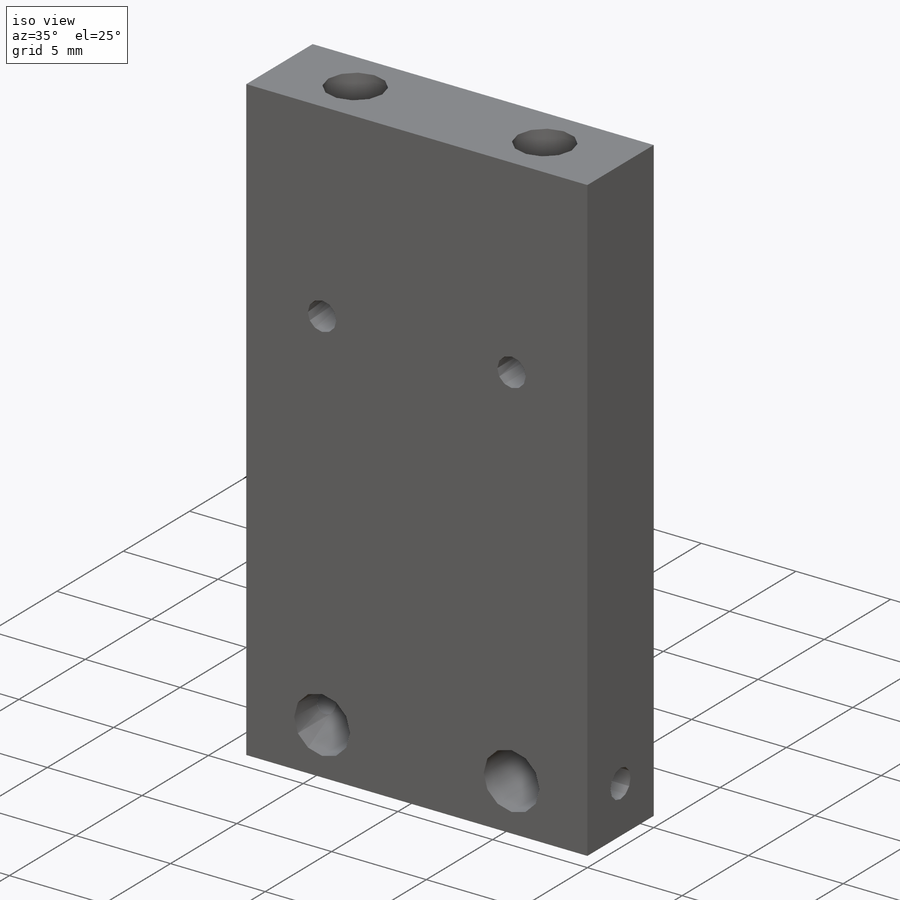
[diagram: iso view]
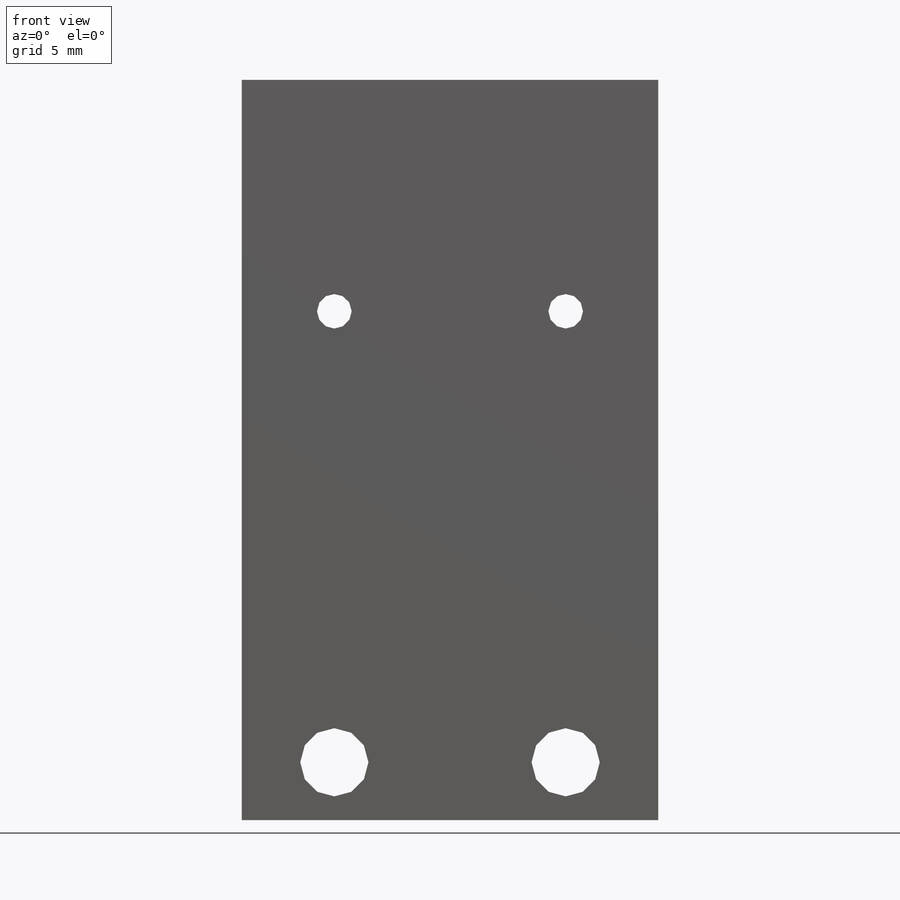
[diagram: front view]
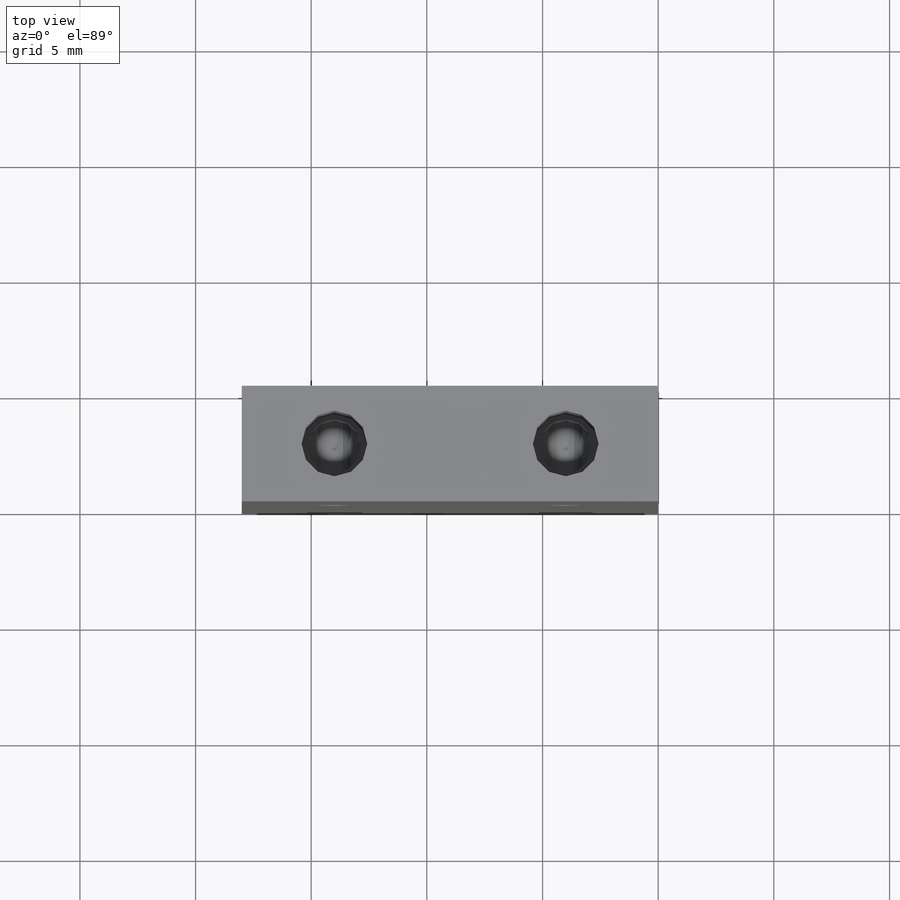
[diagram: top view]
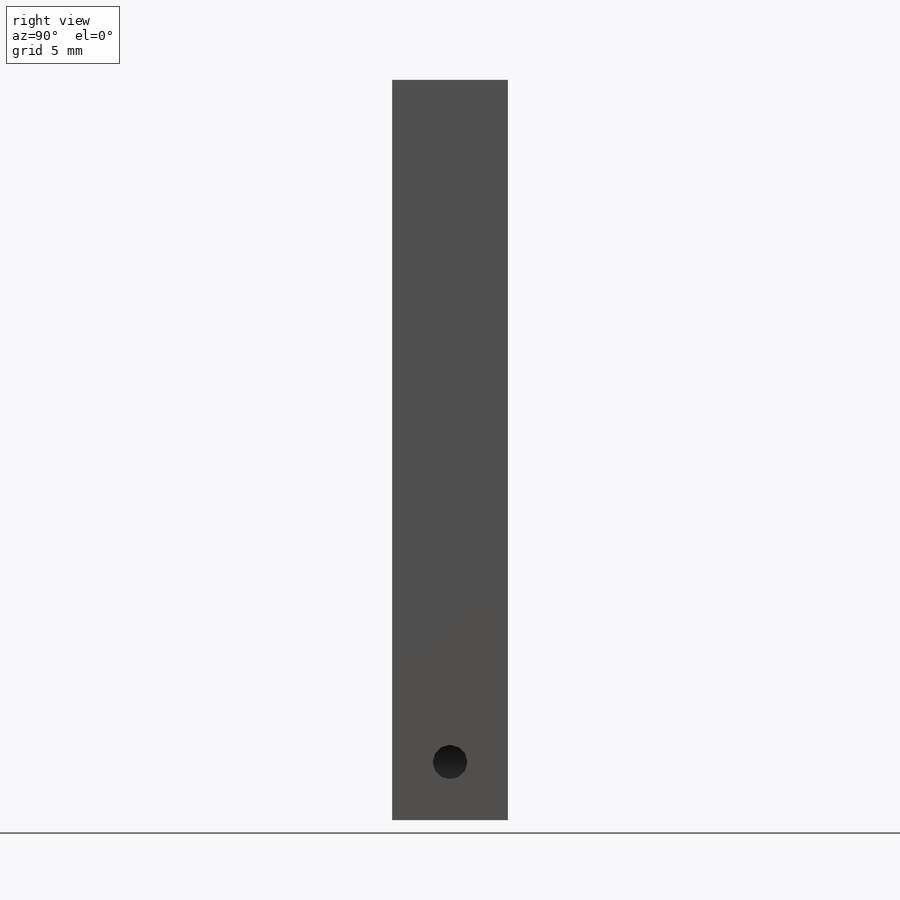
[diagram: right view]
SOLIDWORKS PART (.sldprt)
format: sldprt  version: not decoded by parser v0  size: 268,288 bytes
history: native  units: mm
features: sketch x5, cut_extrude x2, material x1, extrude x1, plane x1, hole x1, mirror x1 + 1 further entry (+13 scaffold rows collapsed)
feature tree (26):
  scaffold x13  (default folders/planes/origin — collapsed)
  material  "6061-T6 (SS)"
  "Origin"  ID=-1
  sketch  "Sketch1"  dims[D1=18.0mm D2=32.0mm]
  extrude  "Extrude1"  Depth=5mm
  plane  "Plane1"
  hole  "#4-40 Tapped Hole1"  Diameter=2.2606mm Depth=10.1346mm
  sketch  "3DSketch1"  dims[D1=2.5mm D2=5.0mm]
  sketch  "Sketch2"  dims[hole-wizard template sketch: 29 standard entries collapsed; hole parameters kept: c8.Tap Drill Depth=10.1346mm c8.Thread Major Dia.=2.8448mm c8.Thread Depth=8.2296mm c8.D5=~14.816244mm c8.Drill Angle=118.0deg]
  sketch  "Sketch3"  dims[D4=1.5mm D5=2.9464mm D1=5.0mm D2=2.5mm D3=10.0mm]
  cut_extrude  "Extrude2"  [1 undecoded]
  sketch  "Sketch4"  dims[D2=1.5mm D1=2.5mm D3=2.5mm]
  cut_extrude  "Extrude3"  Depth=2.794mm
  mirror  "Mirror2"
decode coverage: 8 of 10 modeling features carry decoded parameters; 1 rows unclassified (native names shown)
note: ~ marks probable driven/reference dimensions
note: 1 parameter value undecoded
note: suppression state not decoded; provenance and decode notes live in map.json
